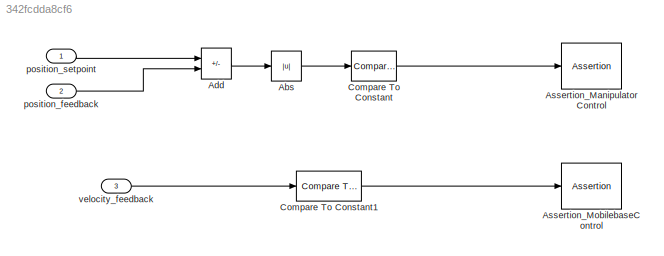
MODEL slx_342fcdda8cf6
KIND model
CONFIG AbsTol = auto
CONFIG EnableMultiTasking = off
CONFIG FixedStep = auto
CONFIG MaxStep = auto
CONFIG MinStep = auto
CONFIG RelTol = 1e-3
CONFIG SampleTimeConstraint = Unconstrained
CONFIG SolverName = VariableStepAuto
CONFIG StartTime = 0.0
CONFIG StopTime = inf
BLOCK [Abs] Abs
  SaturateOnIntegerOverflow = off
BLOCK [Sum] Add
  IconShape = rectangular
  Inputs = +-
  Ports = [2, 1]
BLOCK [Assertion] Assertion_ManipulatorControl
  StopWhenAssertionFail = off
BLOCK [Assertion] Assertion_MobilebaseControl
  StopWhenAssertionFail = off
BLOCK [Reference] Compare To Constant  REF=simulink/Logic and Bit
Operations/Compare
To Constant
  Ports = [1, 1]
  SourceBlock = simulink/Logic and Bit\nOperations/Compare\nTo Constant
  SourceProductBaseCode = SL
  SourceType = Compare To Constant
BLOCK [Reference] Compare To Constant1  REF=simulink/Logic and Bit
Operations/Compare
To Constant
  Ports = [1, 1]
  SourceBlock = simulink/Logic and Bit\nOperations/Compare\nTo Constant
  SourceProductBaseCode = SL
  SourceType = Compare To Constant
BLOCK [Inport] position_feedback
  Port = 2
BLOCK [Inport] position_setpoint
BLOCK [Inport] velocity_feedback
  Port = 3
LINE Abs:1 -> Compare To Constant:1
LINE Add:1 -> Abs:1
LINE Compare To Constant1:1 -> Assertion_MobilebaseControl:1
LINE Compare To Constant:1 -> Assertion_ManipulatorControl:1
LINE position_feedback:1 -> Add:2
LINE position_setpoint:1 -> Add:1
LINE velocity_feedback:1 -> Compare To Constant1:1
